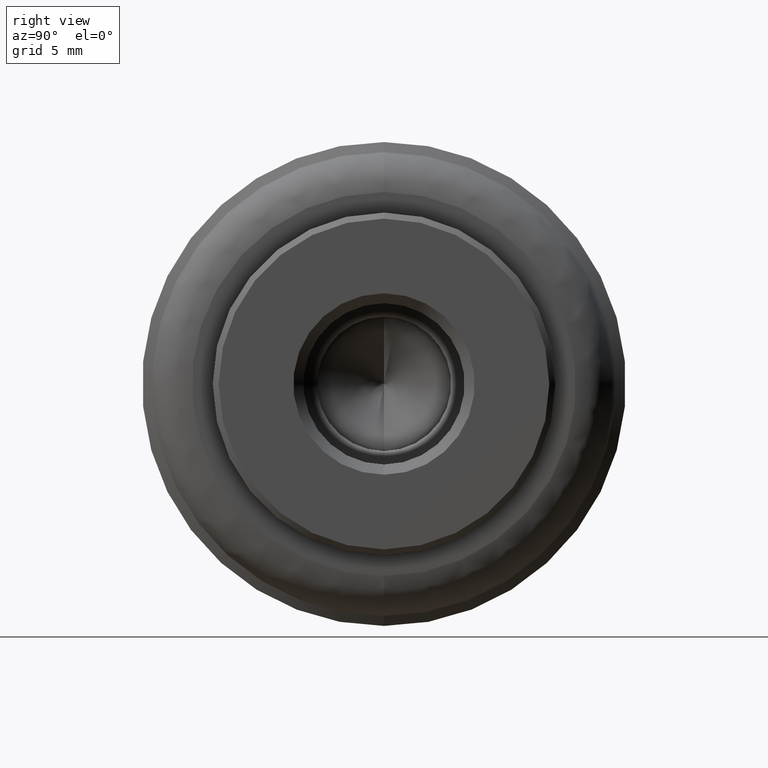
[diagram: clean part render]
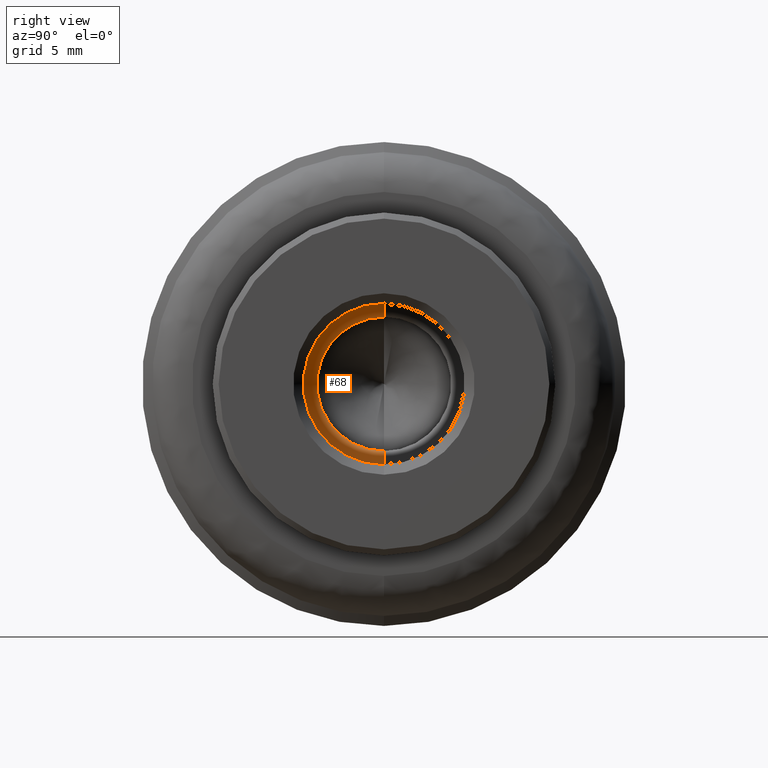
[diagram: same view with one face highlighted and labeled with its STEP entity id]
A machine part, right view. The second image highlights one B-rep face of the part: STEP entity #68.
In plain terms, the highlighted face is a freeform B-spline surface patch.
Its self-contained STEP definition (entity closure, byte-faithful):
#68=ADVANCED_FACE('',(#356),#355,.F.);
#355=( BOUNDED_SURFACE() B_SPLINE_SURFACE( 2,1,((#682,#683),(#684,#685),(#686,#687),(#688,#689),(#690,#691)), .UNSPECIFIED.,.F.,.F.,.F.) B_SPLINE_SURFACE_WITH_KNOTS((3,2,3),(2,2),(0.00000000000E+00,5.00000000000E-01,1.00000000000E+00),(0.00000000000E+00,1.00000000000E+00), .UNSPECIFIED. ) GEOMETRIC_REPRESENTATION_ITEM() RATIONAL_B_SPLINE_SURFACE(((1.00000000000E+00,1.00000000000E+00),(7.07106781187E-01,7.07106781187E-01),(1.00000000000E+00,1.00000000000E+00),(7.07106781187E-01,7.07106781187E-01),(1.00000000000E+00,1.00000000000E+00))) REPRESENTATION_ITEM('') SURFACE() );
#356=FACE_OUTER_BOUND('',#692,.T.);
#682=CARTESIAN_POINT('',(-1.19999999996E+01,0.00000000000E+00,0.00000000000E+00));
#683=CARTESIAN_POINT('',(-6.34314575068E+00,-1.38552968998E-15,5.65685424949E+00));
#684=CARTESIAN_POINT('',(-1.19999999996E+01,0.00000000000E+00,0.00000000000E+00));
#685=CARTESIAN_POINT('',(-6.34314575068E+00,-5.65685424949E+00,5.65685424949E+00));
#686=CARTESIAN_POINT('',(-1.19999999996E+01,0.00000000000E+00,0.00000000000E+00));
#687=CARTESIAN_POINT('',(-6.34314575068E+00,-5.65685424949E+00,-1.03914726748E-15));
#688=CARTESIAN_POINT('',(-1.19999999996E+01,0.00000000000E+00,0.00000000000E+00));
#689=CARTESIAN_POINT('',(-6.34314575068E+00,-5.65685424949E+00,-5.65685424949E+00));
#690=CARTESIAN_POINT('',(-1.19999999996E+01,0.00000000000E+00,0.00000000000E+00));
#691=CARTESIAN_POINT('',(-6.34314575068E+00,6.92764844988E-16,-5.65685424949E+00));
#692=EDGE_LOOP('',(#822,#823,#824,#825));
#822=ORIENTED_EDGE('',*,*,#894,.T.);
#823=ORIENTED_EDGE('',*,*,#895,.T.);
#824=ORIENTED_EDGE('',*,*,#893,.F.);
#825=ORIENTED_EDGE('',*,*,#896,.F.);
#893=EDGE_CURVE('',#1244,#1243,#1263,.T.);
#894=EDGE_CURVE('',#1269,#1270,#1271,.T.);
#895=EDGE_CURVE('',#1270,#1243,#1277,.T.);
#896=EDGE_CURVE('',#1269,#1244,#1283,.T.);
#1243=VERTEX_POINT('',#1509);
#1244=VERTEX_POINT('',#1510);
#1263=CIRCLE('',#1522,4.00000000000E+00);
#1269=VERTEX_POINT('',#1523);
#1270=VERTEX_POINT('',#1524);
#1271=CIRCLE('',#1528,3.32500000000E+00);
#1277=(BOUNDED_CURVE() B_SPLINE_CURVE(1,(#1529,#1530),.UNSPECIFIED.,.F.,.F.) B_SPLINE_CURVE_WITH_KNOTS((2,2),(5.87782514948E-01,7.07106777449E-01),.UNSPECIFIED.) CURVE() GEOMETRIC_REPRESENTATION_ITEM() RATIONAL_B_SPLINE_CURVE((1.00000000000E+00,1.00000000000E+00)) REPRESENTATION_ITEM('') );
#1283=(BOUNDED_CURVE() B_SPLINE_CURVE(1,(#1531,#1532),.UNSPECIFIED.,.F.,.F.) B_SPLINE_CURVE_WITH_KNOTS((2,2),(5.87782511861E-01,7.07106780467E-01),.UNSPECIFIED.) CURVE() GEOMETRIC_REPRESENTATION_ITEM() RATIONAL_B_SPLINE_CURVE((7.50000000000E-01,7.50000000000E-01)) REPRESENTATION_ITEM('') );
#1509=CARTESIAN_POINT('',(-8.00000000000E+00,0.00000000000E+00,4.00000000000E+00));
#1510=CARTESIAN_POINT('',(-8.00000000000E+00,4.44089209850E-16,-4.00000000000E+00));
#1519=CARTESIAN_POINT('',(-8.00000000000E+00,0.00000000000E+00,0.00000000000E+00));
#1520=DIRECTION('',(-1.00000000000E+00,0.00000000000E+00,0.00000000000E+00));
#1521=DIRECTION('',(0.00000000000E+00,-1.22460635382E-16,1.00000000000E+00));
#1522=AXIS2_PLACEMENT_3D('',#1519,#1520,#1521);
#1523=CARTESIAN_POINT('',(-8.67499999993E+00,0.00000000000E+00,-3.32500000000E+00));
#1524=CARTESIAN_POINT('',(-8.67499999993E+00,0.00000000000E+00,3.32500000000E+00));
#1525=CARTESIAN_POINT('',(-8.67499999993E+00,0.00000000000E+00,0.00000000000E+00));
#1526=DIRECTION('',(-1.00000000000E+00,0.00000000000E+00,0.00000000000E+00));
#1527=DIRECTION('',(0.00000000000E+00,-1.22460635382E-16,1.00000000000E+00));
#1528=AXIS2_PLACEMENT_3D('',#1525,#1526,#1527);
#1529=CARTESIAN_POINT('',(-8.67499998247E+00,-8.14363229568E-16,3.32500001746E+00));
#1530=CARTESIAN_POINT('',(-8.00000002115E+00,-9.79685077879E-16,3.99999997885E+00));
#1531=CARTESIAN_POINT('',(-8.67499999993E+00,1.04411148502E-15,-3.32500000000E+00));
#1532=CARTESIAN_POINT('',(-8.00000000407E+00,1.25607396567E-15,-3.99999999593E+00));